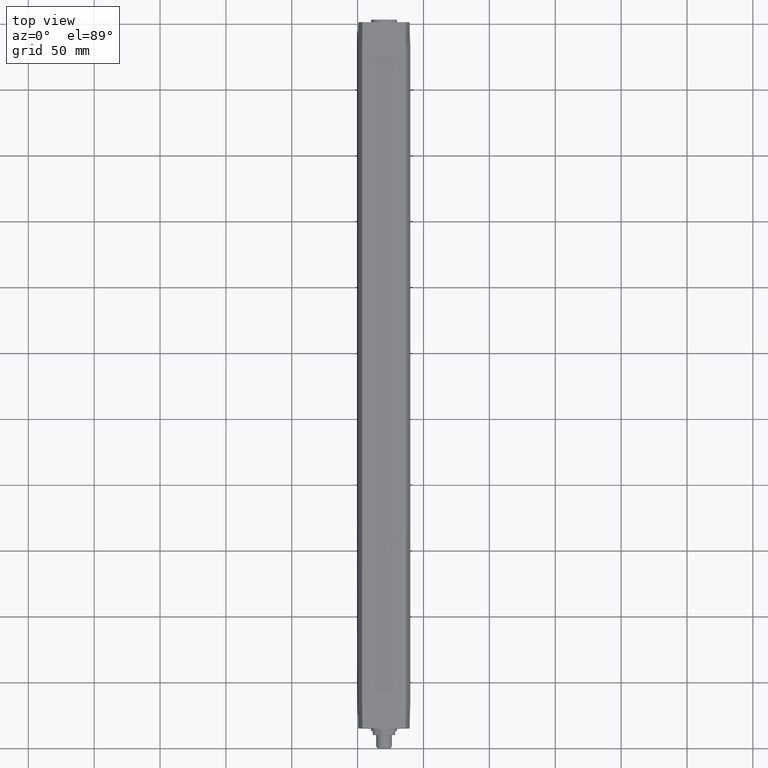
[diagram: clean part render]
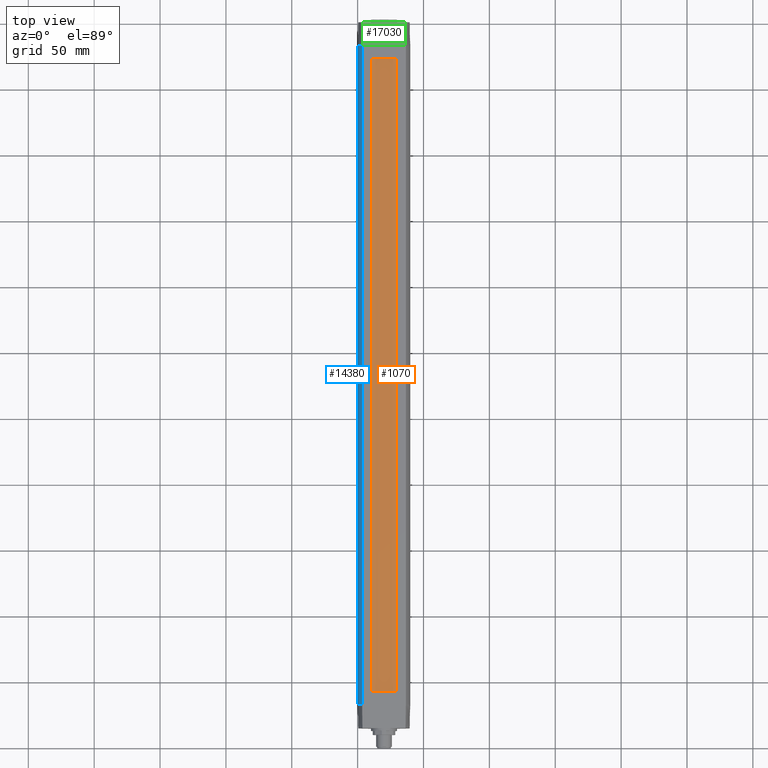
[diagram: same view with three faces highlighted in distinct colors, each labeled with its STEP entity id]
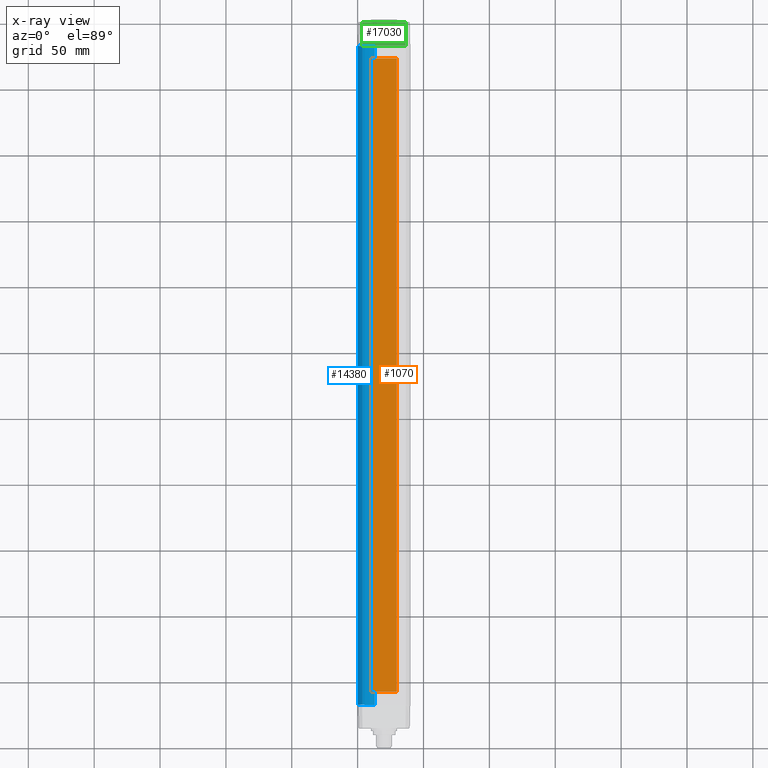
[diagram: x-ray of the same camera — body ghosted, the three highlighted faces saturated]
A machine part, top view with three faces highlighted in distinct colors.
The next image is the same camera in x-ray (body ghosted, the three faces saturated) — at least one of them is partly hidden behind the body in this view.
Their STEP definitions:

[orange] entity #1070 — the highlighted planar face has unit normal (-0, 0, 1).
#680=CARTESIAN_POINT('',(-9.97500378000003,11.,68.77500378));
#690=DIRECTION('',(-0.,1.,0.));
#700=DIRECTION('',(1.,0.,0.));
#710=AXIS2_PLACEMENT_3D('',#680,#690,#700);
#720=PLANE('',#710);
#730=CARTESIAN_POINT('',(0.,11.,415.5));
#740=DIRECTION('',(1.,0.,0.));
#750=VECTOR('',#740,1.);
#760=LINE('',#730,#750);
#770=CARTESIAN_POINT('',(-9.49999999999999,11.,415.5));
#780=VERTEX_POINT('',#770);
#790=CARTESIAN_POINT('',(9.50000000000003,11.,415.5));
#800=VERTEX_POINT('',#790);
#810=EDGE_CURVE('',#780,#800,#760,.T.);
#820=ORIENTED_EDGE('',*,*,#810,.T.);
#830=CARTESIAN_POINT('',(-9.49999999999999,11.,0.));
#840=DIRECTION('',(0.,0.,1.));
#850=VECTOR('',#840,1.);
#860=LINE('',#830,#850);
#870=CARTESIAN_POINT('',(-9.49999999999999,11.,-65.5));
#880=VERTEX_POINT('',#870);
#890=EDGE_CURVE('',#880,#780,#860,.T.);
#900=ORIENTED_EDGE('',*,*,#890,.T.);
#910=CARTESIAN_POINT('',(0.,11.,-65.5));
#920=DIRECTION('',(-1.,0.,0.));
#930=VECTOR('',#920,1.);
#940=LINE('',#910,#930);
#950=CARTESIAN_POINT('',(9.50000000000003,11.,-65.5));
#960=VERTEX_POINT('',#950);
#970=EDGE_CURVE('',#960,#880,#940,.T.);
#980=ORIENTED_EDGE('',*,*,#970,.T.);
#990=CARTESIAN_POINT('',(9.50000000000003,11.,0.));
#1000=DIRECTION('',(0.,0.,-1.));
#1010=VECTOR('',#1000,1.);
#1020=LINE('',#990,#1010);
#1030=EDGE_CURVE('',#800,#960,#1020,.T.);
#1040=ORIENTED_EDGE('',*,*,#1030,.T.);
#1050=EDGE_LOOP('',(#1040,#980,#900,#820));
#1060=FACE_OUTER_BOUND('',#1050,.T.);
#1070=ADVANCED_FACE('',(#1060),#720,.T.);

[blue] entity #14380 — the highlighted cylindrical surface (edge-blend (fillet) strip) has radius 20 mm, axis along (0, 1, -0).
#13380=CARTESIAN_POINT('',(6.9597054535393,-18.75,-74.9999999999737));
#13390=VERTEX_POINT('',#13380);
#13860=CARTESIAN_POINT('',(6.9597054535371,-18.75,425.000000000013));
#13870=VERTEX_POINT('',#13860);
#13900=CARTESIAN_POINT('',(6.95970545353759,-18.75,-75.4999999999999));
#13910=DIRECTION('',(0.,0.,-1.));
#13920=VECTOR('',#13910,1.);
#13930=LINE('',#13900,#13920);
#13940=EDGE_CURVE('',#13870,#13390,#13930,.T.);
#14060=CARTESIAN_POINT('',(-4.44089209850063E-14,-3.5527136788005E-15,
-75.4999999999999));
#14070=DIRECTION('',(0.,0.,1.));
#14080=DIRECTION('',(1.,0.,0.));
#14090=AXIS2_PLACEMENT_3D('',#14060,#14070,#14080);
#14100=CYLINDRICAL_SURFACE('',#14090,20.);
#14110=CARTESIAN_POINT('',(-5.69743333006917E-15,1.75599164270057E-15,
-74.9999999999736));
#14120=DIRECTION('',(2.67861795197786E-16,-3.53406135405247E-16,-1.));
#14130=DIRECTION('',(1.,9.46640018635614E-32,2.67861795197786E-16));
#14140=AXIS2_PLACEMENT_3D('',#14110,#14120,#14130);
#14150=CIRCLE('',#14140,20.0000000000003);
#14160=CARTESIAN_POINT('',(16.5698521417672,11.2,-74.9999999999736));
#14170=VERTEX_POINT('',#14160);
#14180=EDGE_CURVE('',#14170,#13390,#14150,.T.);
#14190=ORIENTED_EDGE('',*,*,#14180,.F.);
#14200=ORIENTED_EDGE('',*,*,#13940,.T.);
#14210=CARTESIAN_POINT('',(-5.39975551799169E-14,-1.05335429334882E-13,
425.000000000027));
#14220=DIRECTION('',(1.23496678478392E-15,3.81502863814771E-15,1.));
#14230=DIRECTION('',(1.,-4.71143365111188E-30,-1.23496678478392E-15));
#14240=AXIS2_PLACEMENT_3D('',#14210,#14220,#14230);
#14250=CIRCLE('',#14240,19.9999999999997);
#14260=CARTESIAN_POINT('',(16.5698521417661,11.2,425.));
#14270=VERTEX_POINT('',#14260);
#14280=EDGE_CURVE('',#13870,#14270,#14250,.T.);
#14290=ORIENTED_EDGE('',*,*,#14280,.F.);
#14300=CARTESIAN_POINT('',(16.5698521417664,11.2,-75.4999999999999));
#14310=DIRECTION('',(0.,0.,1.));
#14320=VECTOR('',#14310,1.);
#14330=LINE('',#14300,#14320);
#14340=EDGE_CURVE('',#14170,#14270,#14330,.T.);
#14350=ORIENTED_EDGE('',*,*,#14340,.T.);
#14360=EDGE_LOOP('',(#14350,#14290,#14200,#14190));
#14370=FACE_OUTER_BOUND('',#14360,.T.);
#14380=ADVANCED_FACE('',(#14370),#14100,.T.);

[green] entity #17030 — the highlighted planar face has unit normal (0, 0.0244, 0.9997).
#14260=CARTESIAN_POINT('',(16.5698521417661,11.2,425.));
#14270=VERTEX_POINT('',#14260);
#14710=CARTESIAN_POINT('',(0.,11.2,425.));
#14720=DIRECTION('',(1.,0.,0.));
#14730=VECTOR('',#14720,1.);
#14740=LINE('',#14710,#14730);
#14750=CARTESIAN_POINT('',(-16.5698521417667,11.2,424.999999999989));
#14760=VERTEX_POINT('',#14750);
#14770=EDGE_CURVE('',#14760,#14270,#14740,.T.);
#15950=CARTESIAN_POINT('',(4.41034525985885E-13,-3.81552469983486E-14,
424.54918961778));
#15960=DIRECTION('',(1.37384890593759E-14,-2.33252530908452E-15,-1.));
#15970=DIRECTION('',(-1.,0.,-1.37384890593759E-14));
#15980=AXIS2_PLACEMENT_3D('',#15950,#15960,#15970);
#15990=CONICAL_SURFACE('',#15980,20.0110175684286,0.0244346095279339);
#16000=CARTESIAN_POINT('',(17.3983485288593,10.7490916199983,
443.450003778873));
#16010=DIRECTION('',(0.,0.999701489781183,0.0244321781526531));
#16020=DIRECTION('',(0.,0.0244321781526531,-0.999701489781183));
#16030=AXIS2_PLACEMENT_3D('',#16000,#16010,#16020);
#16040=PLANE('',#16030);
#16050=CARTESIAN_POINT('',(-16.3345515631189,10.7600894754653,
443.000000000001));
#16060=CARTESIAN_POINT('',(-16.3543011510993,10.79674864174,
441.50000180459));
#16070=CARTESIAN_POINT('',(-16.3740149278629,10.8334078193384,
440.000003145843));
#16080=CARTESIAN_POINT('',(-16.3936932794729,10.8700670080362,
438.500004032936));
#16090=CARTESIAN_POINT('',(-16.4133716310829,10.9067261967339,
437.000004920032));
#16100=CARTESIAN_POINT('',(-16.4330145575279,10.9433853965312,
435.500005352964));
#16110=CARTESIAN_POINT('',(-16.4526224379826,10.9800446072051,
434.000005340851));
#16120=CARTESIAN_POINT('',(-16.4722303184373,11.016703817879,
432.500005328738));
#16130=CARTESIAN_POINT('',(-16.4918031528906,11.0533630394296,
431.00000487158));
#16140=CARTESIAN_POINT('',(-16.5113413137997,11.0900222716357,
429.500003978425));
#16150=CARTESIAN_POINT('',(-16.5211103942542,11.1083518877387,
428.750003531849));
#16160=CARTESIAN_POINT('',(-16.5308708062188,11.1266815065056,
428.000002976275));
#16170=CARTESIAN_POINT('',(-16.540622595634,11.1450111279089,
427.250002312826));
#16180=CARTESIAN_POINT('',(-16.5503743850492,11.1633407493122,
426.500001649378));
#16190=CARTESIAN_POINT('',(-16.5601175519146,11.1816703733518,
425.750000878059));
#16200=CARTESIAN_POINT('',(-16.5698521417665,11.2000000000003,
424.999999999989));
#16210=B_SPLINE_CURVE_WITH_KNOTS('',3,(#16050,#16060,#16070,#16080,
#16090,#16100,#16110,#16120,#16130,#16140,#16150,#16160,#16170,#16180,
#16190,#16200),.UNSPECIFIED.,.F.,.F.,(4,3,3,3,3,4),(0.,4.50172786500722,
9.00345565523507,13.5051838161806,15.7560481315727,18.0069124850103),
.UNSPECIFIED.);
#16220=SURFACE_CURVE('',#16210,(#16040,#15990),.CURVE_3D.);
#16230=CARTESIAN_POINT('',(-16.3345515631188,10.7600894754653,
443.000000000002));
#16240=VERTEX_POINT('',#16230);
#16250=EDGE_CURVE('',#16240,#14760,#16220,.T.);
#16690=CARTESIAN_POINT('',(-6.46996610715977E-14,-2.17663281386318E-13,
424.54918961772));
#16700=DIRECTION('',(-2.46993356956785E-15,-7.63005727629543E-15,-1.));
#16710=DIRECTION('',(0.,-1.,7.63005727629543E-15));
#16720=AXIS2_PLACEMENT_3D('',#16690,#16700,#16710);
#16730=CONICAL_SURFACE('',#16720,20.0110175684297,0.0244346095279202);
#16740=CARTESIAN_POINT('',(16.5698521417661,11.2,425.));
#16750=CARTESIAN_POINT('',(16.5503829603345,11.1633407434497,
426.500001889257));
#16760=CARTESIAN_POINT('',(16.5308794717118,11.1266814982106,
428.000003315686));
#16770=CARTESIAN_POINT('',(16.5113413099727,11.0900222644556,
429.500004272219));
#16780=CARTESIAN_POINT('',(16.4918031482336,11.0533630307006,
431.000005228749));
#16790=CARTESIAN_POINT('',(16.4722303133889,11.0167038084295,
432.500005715388));
#16800=CARTESIAN_POINT('',(16.4526224329612,10.9800445978173,
434.000005724976));
#16810=CARTESIAN_POINT('',(16.4330145525335,10.9433853872051,
435.500005734564));
#16820=CARTESIAN_POINT('',(16.413371626534,10.9067261882516,
437.000005267107));
#16830=CARTESIAN_POINT('',(16.3936932757676,10.8700670011337,
438.500004315366));
#16840=CARTESIAN_POINT('',(16.3740149250012,10.8334078140158,
440.000003363628));
#16850=CARTESIAN_POINT('',(16.3543011494794,10.7967486387333,
441.500001927615));
#16860=CARTESIAN_POINT('',(16.3345515631188,10.7600894754653,
443.000000000001));
#16870=B_SPLINE_CURVE_WITH_KNOTS('',3,(#16740,#16750,#16760,#16770,
#16780,#16790,#16800,#16810,#16820,#16830,#16840,#16850,#16860),
.UNSPECIFIED.,.F.,.F.,(4,3,3,3,4),(0.,4.50172818861433,9.00345634592448,
13.5051843591299,18.0069120008663),.UNSPECIFIED.);
#16880=SURFACE_CURVE('',#16870,(#16730,#16040),.CURVE_3D.);
#16890=CARTESIAN_POINT('',(16.3345515631188,10.7600894754653,
443.000000000002));
#16900=VERTEX_POINT('',#16890);
#16910=EDGE_CURVE('',#14270,#16900,#16880,.T.);
#16920=ORIENTED_EDGE('',*,*,#16910,.F.);
#16930=CARTESIAN_POINT('',(0.,10.7600894754653,443.));
#16940=DIRECTION('',(1.,0.,0.));
#16950=VECTOR('',#16940,1.);
#16960=LINE('',#16930,#16950);
#16970=EDGE_CURVE('',#16240,#16900,#16960,.T.);
#16980=ORIENTED_EDGE('',*,*,#16970,.T.);
#16990=ORIENTED_EDGE('',*,*,#16250,.F.);
#17000=ORIENTED_EDGE('',*,*,#14770,.F.);
#17010=EDGE_LOOP('',(#17000,#16990,#16980,#16920));
#17020=FACE_OUTER_BOUND('',#17010,.T.);
#17030=ADVANCED_FACE('',(#17020),#16040,.T.);